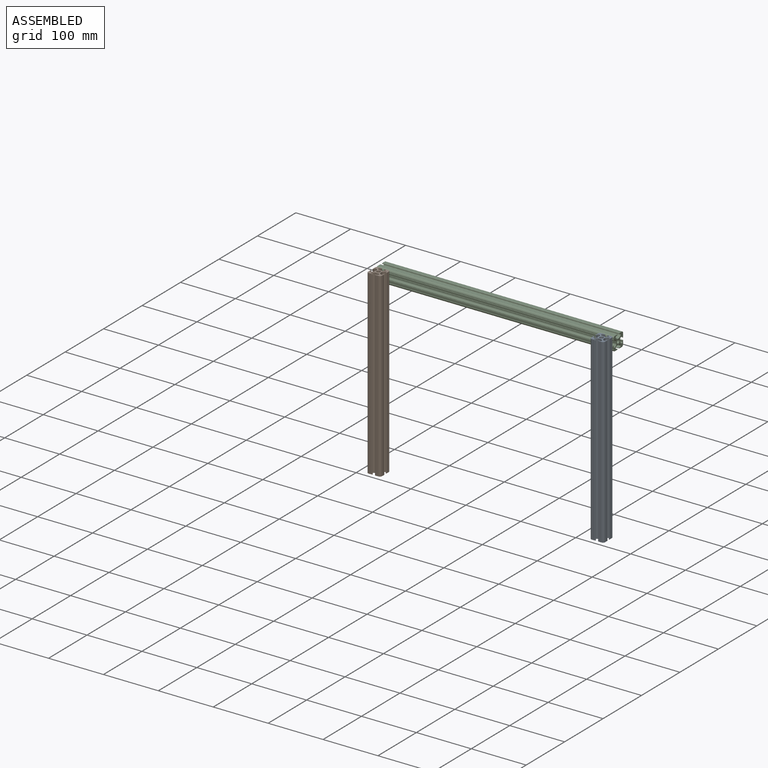
[diagram: assembled view]
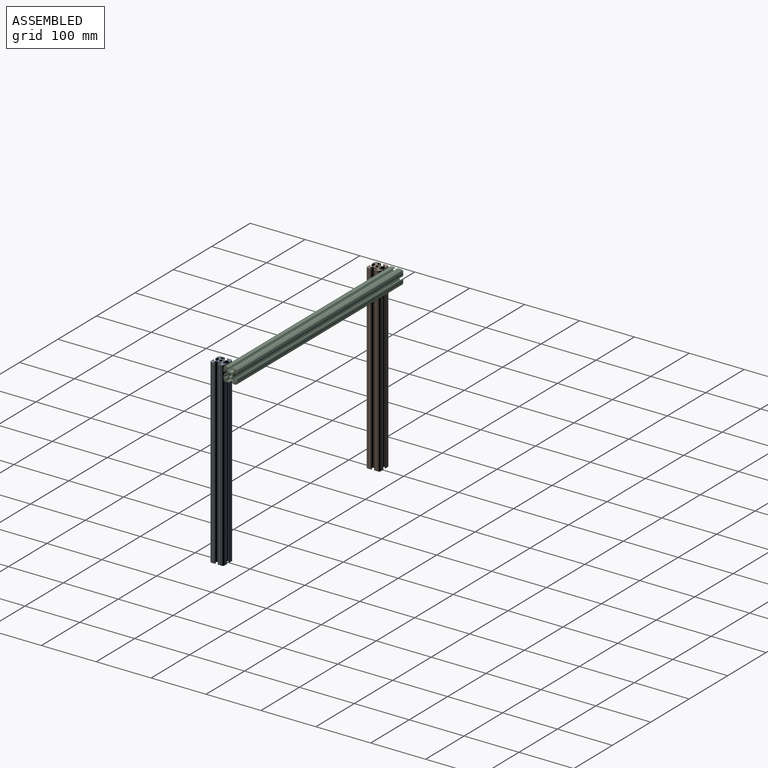
[diagram: assembled view, second angle]
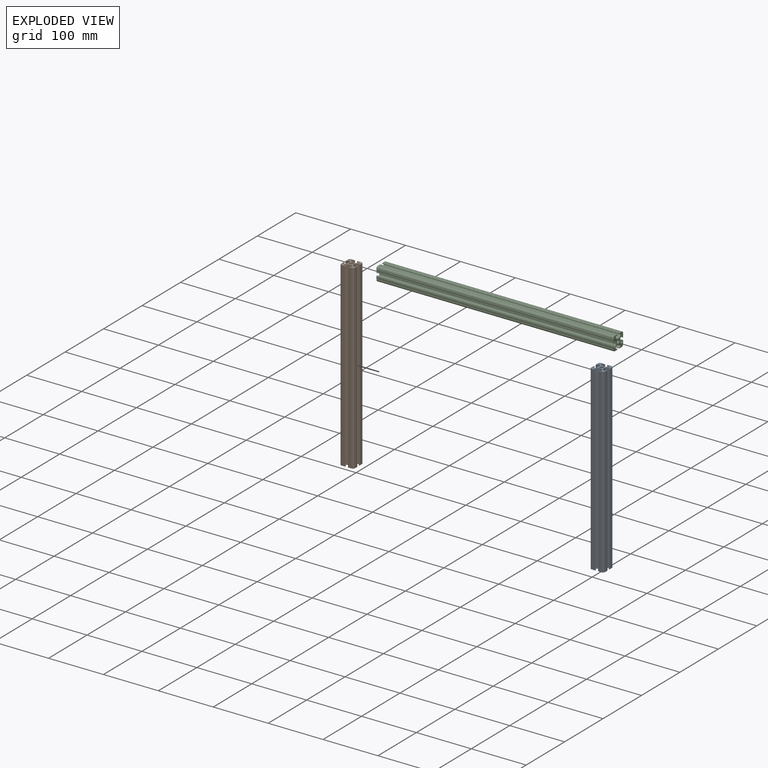
[diagram: exploded view]
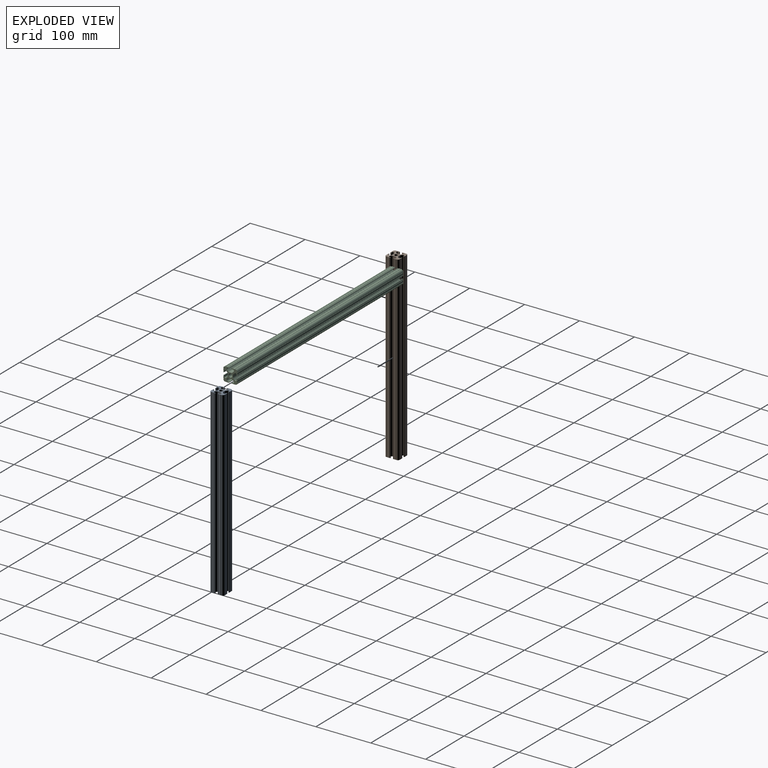
[diagram: exploded view, second angle]
ASSEMBLY  parts=3 mates=6
PART A: 77 faces, bbox 25.4x25.4x330.2 mm
  f0: cylinder r=0.77mm len=330.2mm, axis (0,0,-1), area 827mm2, adj f1,f73,f75,f76
  f1: plane 330.2x1.73mm, normal (0,-1,0), area 572.7mm2, adj f0,f2,f75,f76
  f2: cylinder r=1.91mm len=330.2mm, axis (0,0,-1), area 1482.1mm2, adj f1,f3,f75,f76
  f3: plane 330.2x1.85mm, normal (-0.71,0.71,0), area 861.8mm2, adj f2,f4,f75,f76
  f4: cylinder r=3.81mm len=330.2mm, axis (0,0,-1), area 988.1mm2, adj f3,f5,f75,f76
  f5: plane 330.2x2.91mm, normal (0,1,0), area 962.4mm2, adj f4,f6,f75,f76
  f6: cylinder r=3.81mm len=330.2mm, axis (0,0,-1), area 988.1mm2, adj f5,f7,f75,f76
  f7: plane 330.2x1.85mm, normal (0.71,0.71,0), area 861.8mm2, adj f6,f8,f75,f76
  f8: cylinder r=1.91mm len=330.2mm, axis (0,0,-1), area 1482.1mm2, adj f7,f9,f75,f76
  f9: plane 330.2x1.73mm, normal (0,-1,0), area 572.7mm2, adj f8,f10,f75,f76
  f10: cylinder r=0.77mm len=330.2mm, axis (0,0,-1), area 802.7mm2, adj f9,f11,f75,f76
  f11: plane 330.2x0.67mm, normal (0,1,0), area 221.3mm2, adj f10,f12,f75,f76
  f12: cylinder r=0.55mm len=330.2mm, axis (0,0,-1), area 564.1mm2, adj f11,f13,f75,f76
  f13: plane 330.2x3.14mm, normal (0,1,0), area 1036mm2, adj f12,f14,f75,f76
  f14: cylinder r=0.55mm len=330.2mm, axis (0,0,-1), area 571.9mm2, adj f13,f15,f75,f76
  f15: cylinder r=3.81mm len=330.2mm, axis (0,0,-1), area 1976.2mm2, adj f14,f16,f75,f76
  f16: plane 330.2x4.24mm, normal (-1,0,0), area 1400.1mm2, adj f15,f17,f75,f76
  f17: cylinder r=0.55mm len=330.2mm, axis (0,0,-1), area 573.4mm2, adj f16,f18,f75,f76
  f18: plane 330.2x0.64mm, normal (-1,0,0), area 211.4mm2, adj f17,f19,f75,f76
  f19: cylinder r=0.77mm len=330.2mm, axis (0,0,-1), area 790.8mm2, adj f18,f20,f75,f76
  f20: plane 330.2x1.73mm, normal (1,0,0), area 572.7mm2, adj f19,f21,f75,f76
  f21: cylinder r=1.91mm len=330.2mm, axis (0,0,-1), area 1482.1mm2, adj f20,f22,f75,f76
  f22: plane 330.2x1.25mm, normal (-0.71,-0.71,0), area 584.9mm2, adj f21,f23,f75,f76
  f23: cylinder r=3.81mm len=330.2mm, axis (0,0,-1), area 988.1mm2, adj f22,f24,f75,f76
  f24: plane 330.2x5.77mm, normal (-1,0,0), area 1905.5mm2, adj f23,f25,f75,f76
  f25: cylinder r=2.81mm len=330.2mm, axis (0,0,-1), area 2915.2mm2, adj f24,f26,f75,f76
  f26: plane 330.2x0.81mm, normal (1,0,0), area 265.8mm2, adj f25,f27,f75,f76
  f27: cylinder r=0.77mm len=330.2mm, axis (0,0,-1), area 802.5mm2, adj f26,f28,f75,f76
  f28: plane 330.2x4.88mm, normal (-1,0,0), area 1611.4mm2, adj f27,f29,f75,f76
  f29: cylinder r=0.55mm len=330.2mm, axis (0,0,-1), area 572mm2, adj f28,f30,f75,f76
  f30: cylinder r=3.81mm len=330.2mm, axis (0,0,-1), area 1976.2mm2, adj f29,f31,f75,f76
  f31: cylinder r=0.55mm len=330.2mm, axis (0,0,-1), area 573.5mm2, adj f30,f32,f75,f76
  f32: plane 330.2x3.78mm, normal (0,-1,0), area 1249.3mm2, adj f31,f33,f75,f76
  f33: cylinder r=0.55mm len=330.2mm, axis (0,0,-1), area 562.7mm2, adj f32,f34,f75,f76
  f34: cylinder r=0.77mm len=330.2mm, axis (0,0,-1), area 794.8mm2, adj f33,f35,f75,f76
  f35: plane 330.2x1.73mm, normal (0,1,0), area 572mm2, adj f34,f36,f75,f76
  f36: cylinder r=1.91mm len=330.2mm, axis (0,0,-1), area 1482.1mm2, adj f35,f37,f75,f76
  f37: plane 330.2x1.84mm, normal (0.71,-0.71,0), area 860.8mm2, adj f36,f38,f75,f76
  f38: cylinder r=3.81mm len=330.2mm, axis (0,0,-1), area 988.1mm2, adj f37,f39,f75,f76
  f39: plane 330.2x2.91mm, normal (0,-1,0), area 962.4mm2, adj f38,f40,f75,f76
  f40: cylinder r=3.81mm len=330.2mm, axis (0,0,-1), area 988.1mm2, adj f39,f41,f75,f76
  f41: plane 330.2x1.84mm, normal (-0.71,-0.71,0), area 860.8mm2, adj f40,f42,f75,f76
  f42: cylinder r=1.91mm len=330.2mm, axis (0,0,-1), area 1482.1mm2, adj f41,f43,f75,f76
  f43: plane 330.2x1.73mm, normal (0,1,0), area 572mm2, adj f42,f44,f75,f76
  f44: cylinder r=0.79mm len=330.2mm, axis (0,0,-1), area 706.2mm2, adj f43,f45,f75,f76
  f45: plane 330.2x0.63mm, normal (0,-1,0), area 208.6mm2, adj f44,f46,f75,f76
  f46: cylinder r=0.55mm len=330.2mm, axis (0,0,-1), area 567.5mm2, adj f45,f47,f75,f76
  f47: plane 330.2x3.15mm, normal (0,-1,0), area 1041.3mm2, adj f46,f48,f75,f76
  f48: cylinder r=0.54mm len=330.2mm, axis (0,0,-1), area 564.8mm2, adj f47,f49,f75,f76
  f49: cylinder r=3.81mm len=330.2mm, axis (0,0,-1), area 1976.2mm2, adj f48,f50,f75,f76
  f50: cylinder r=0.55mm len=330.2mm, axis (0,0,-1), area 562.1mm2, adj f49,f51,f75,f76
  f51: plane 330.2x3.15mm, normal (1,0,0), area 1040.2mm2, adj f50,f52,f75,f76
  f52: cylinder r=0.55mm len=330.2mm, axis (0,0,-1), area 566mm2, adj f51,f53,f75,f76
  f53: plane 330.2x0.63mm, normal (1,0,0), area 209.2mm2, adj f52,f54,f75,f76
  f54: cylinder r=0.78mm len=330.2mm, axis (0,0,-1), area 768.3mm2, adj f53,f55,f75,f76
  f55: plane 330.2x1.73mm, normal (-1,0,0), area 572mm2, adj f54,f56,f75,f76
  f56: cylinder r=1.91mm len=330.2mm, axis (0,0,-1), area 1482.1mm2, adj f55,f57,f75,f76
  f57: plane 330.2x1.84mm, normal (0.71,0.71,0), area 860.8mm2, adj f56,f58,f75,f76
  f58: cylinder r=3.81mm len=330.2mm, axis (0,0,-1), area 988.1mm2, adj f57,f59,f75,f76
  f59: plane 330.2x2.91mm, normal (1,0,0), area 962.4mm2, adj f58,f60,f75,f76
  f60: cylinder r=3.81mm len=330.2mm, axis (0,0,-1), area 988.1mm2, adj f59,f61,f75,f76
  f61: plane 330.2x1.84mm, normal (0.71,-0.71,0), area 860.8mm2, adj f60,f62,f75,f76
  f62: cylinder r=1.91mm len=330.2mm, axis (0,0,-1), area 1482.1mm2, adj f61,f63,f75,f76
  f63: plane 330.2x1.73mm, normal (-1,0,0), area 572mm2, adj f62,f64,f75,f76
  f64: cylinder r=0.78mm len=330.2mm, axis (0,0,-1), area 778.4mm2, adj f63,f65,f75,f76
  f65: plane 330.2x0.64mm, normal (1,0,0), area 211.4mm2, adj f64,f66,f75,f76
  f66: cylinder r=0.55mm len=330.2mm, axis (0,0,-1), area 566.5mm2, adj f65,f67,f75,f76
  f67: plane 330.2x3.15mm, normal (1,0,0), area 1039.3mm2, adj f66,f68,f75,f76
  f68: cylinder r=0.55mm len=330.2mm, axis (0,0,-1), area 570.3mm2, adj f67,f69,f75,f76
  f69: cylinder r=3.81mm len=330.2mm, axis (0,0,-1), area 1976.2mm2, adj f68,f70,f75,f76
  f70: cylinder r=0.56mm len=330.2mm, axis (0,0,-1), area 538.4mm2, adj f69,f71,f75,f76
  f71: plane 330.2x3.13mm, normal (0,1,0), area 1033.4mm2, adj f70,f72,f75,f76
  f72: cylinder r=0.55mm len=330.2mm, axis (0,0,-1), area 562.9mm2, adj f71,f73,f75,f76
  f73: plane 330.2x0.64mm, normal (0,1,0), area 212mm2, adj f0,f72,f75,f76
  f74: cylinder r=3.36mm len=330.2mm, axis (0,0,-1), area 6976.2mm2, adj f75,f76
  f75: plane 25.4x25.4mm, normal (0,0,1), area 296.9mm2, adj f0,f1,f2,f3,f4,f5,f6,f7
  f76: plane 25.4x25.4mm, normal (0,0,-1), area 296.9mm2, adj f0,f1,f2,f3,f4,f5,f6,f7
PART B: same geometry as A
PART C: 77 faces, bbox 25.4x25.4x431.8 mm
  f0: cylinder r=0.77mm len=431.8mm, axis (0,0,-1), area 1081.5mm2, adj f1,f73,f75,f76
  f1: plane 431.8x1.73mm, normal (0,-1,0), area 749mm2, adj f0,f2,f75,f76
  f2: cylinder r=1.91mm len=431.8mm, axis (0,0,-1), area 1938.2mm2, adj f1,f3,f75,f76
  f3: plane 431.8x1.85mm, normal (-0.71,0.71,0), area 1127mm2, adj f2,f4,f75,f76
  f4: cylinder r=3.81mm len=431.8mm, axis (0,0,-1), area 1292.1mm2, adj f3,f5,f75,f76
  f5: plane 431.8x2.91mm, normal (0,1,0), area 1258.6mm2, adj f4,f6,f75,f76
  f6: cylinder r=3.81mm len=431.8mm, axis (0,0,-1), area 1292.1mm2, adj f5,f7,f75,f76
  f7: plane 431.8x1.85mm, normal (0.71,0.71,0), area 1127mm2, adj f6,f8,f75,f76
  f8: cylinder r=1.91mm len=431.8mm, axis (0,0,-1), area 1938.2mm2, adj f7,f9,f75,f76
  f9: plane 431.8x1.73mm, normal (0,-1,0), area 749mm2, adj f8,f10,f75,f76
  f10: cylinder r=0.77mm len=431.8mm, axis (0,0,-1), area 1049.7mm2, adj f9,f11,f75,f76
  f11: plane 431.8x0.67mm, normal (0,1,0), area 289.4mm2, adj f10,f12,f75,f76
  f12: cylinder r=0.55mm len=431.8mm, axis (0,0,-1), area 737.7mm2, adj f11,f13,f75,f76
  f13: plane 431.8x3.14mm, normal (0,1,0), area 1354.8mm2, adj f12,f14,f75,f76
  f14: cylinder r=0.55mm len=431.8mm, axis (0,0,-1), area 747.8mm2, adj f13,f15,f75,f76
  f15: cylinder r=3.81mm len=431.8mm, axis (0,0,-1), area 2584.2mm2, adj f14,f16,f75,f76
  f16: plane 431.8x4.24mm, normal (-1,0,0), area 1830.9mm2, adj f15,f17,f75,f76
  f17: cylinder r=0.55mm len=431.8mm, axis (0,0,-1), area 749.8mm2, adj f16,f18,f75,f76
  f18: plane 431.8x0.64mm, normal (-1,0,0), area 276.4mm2, adj f17,f19,f75,f76
  f19: cylinder r=0.77mm len=431.8mm, axis (0,0,-1), area 1034.2mm2, adj f18,f20,f75,f76
  f20: plane 431.8x1.73mm, normal (1,0,0), area 749mm2, adj f19,f21,f75,f76
  f21: cylinder r=1.91mm len=431.8mm, axis (0,0,-1), area 1938.2mm2, adj f20,f22,f75,f76
  f22: plane 431.8x1.25mm, normal (-0.71,-0.71,0), area 764.9mm2, adj f21,f23,f75,f76
  f23: cylinder r=3.81mm len=431.8mm, axis (0,0,-1), area 1292.1mm2, adj f22,f24,f75,f76
  f24: plane 431.8x5.77mm, normal (-1,0,0), area 2491.8mm2, adj f23,f25,f75,f76
  f25: cylinder r=2.81mm len=431.8mm, axis (0,0,-1), area 3812.2mm2, adj f24,f26,f75,f76
  f26: plane 431.8x0.81mm, normal (1,0,0), area 347.6mm2, adj f25,f27,f75,f76
  f27: cylinder r=0.77mm len=431.8mm, axis (0,0,-1), area 1049.4mm2, adj f26,f28,f75,f76
  f28: plane 431.8x4.88mm, normal (-1,0,0), area 2107.2mm2, adj f27,f29,f75,f76
  f29: cylinder r=0.55mm len=431.8mm, axis (0,0,-1), area 748mm2, adj f28,f30,f75,f76
  f30: cylinder r=3.81mm len=431.8mm, axis (0,0,-1), area 2584.2mm2, adj f29,f31,f75,f76
  f31: cylinder r=0.55mm len=431.8mm, axis (0,0,-1), area 749.9mm2, adj f30,f32,f75,f76
  f32: plane 431.8x3.78mm, normal (0,-1,0), area 1633.7mm2, adj f31,f33,f75,f76
  f33: cylinder r=0.55mm len=431.8mm, axis (0,0,-1), area 735.8mm2, adj f32,f34,f75,f76
  f34: cylinder r=0.77mm len=431.8mm, axis (0,0,-1), area 1039.3mm2, adj f33,f35,f75,f76
  f35: plane 431.8x1.73mm, normal (0,1,0), area 748mm2, adj f34,f36,f75,f76
  f36: cylinder r=1.91mm len=431.8mm, axis (0,0,-1), area 1938.2mm2, adj f35,f37,f75,f76
  f37: plane 431.8x1.84mm, normal (0.71,-0.71,0), area 1125.6mm2, adj f36,f38,f75,f76
  f38: cylinder r=3.81mm len=431.8mm, axis (0,0,-1), area 1292.1mm2, adj f37,f39,f75,f76
  f39: plane 431.8x2.91mm, normal (0,-1,0), area 1258.6mm2, adj f38,f40,f75,f76
  f40: cylinder r=3.81mm len=431.8mm, axis (0,0,-1), area 1292.1mm2, adj f39,f41,f75,f76
  f41: plane 431.8x1.84mm, normal (-0.71,-0.71,0), area 1125.6mm2, adj f40,f42,f75,f76
  f42: cylinder r=1.91mm len=431.8mm, axis (0,0,-1), area 1938.2mm2, adj f41,f43,f75,f76
  f43: plane 431.8x1.73mm, normal (0,1,0), area 748mm2, adj f42,f44,f75,f76
  f44: cylinder r=0.79mm len=431.8mm, axis (0,0,-1), area 923.5mm2, adj f43,f45,f75,f76
  f45: plane 431.8x0.63mm, normal (0,-1,0), area 272.8mm2, adj f44,f46,f75,f76
  f46: cylinder r=0.55mm len=431.8mm, axis (0,0,-1), area 742.2mm2, adj f45,f47,f75,f76
  f47: plane 431.8x3.15mm, normal (0,-1,0), area 1361.6mm2, adj f46,f48,f75,f76
  f48: cylinder r=0.54mm len=431.8mm, axis (0,0,-1), area 738.5mm2, adj f47,f49,f75,f76
  f49: cylinder r=3.81mm len=431.8mm, axis (0,0,-1), area 2584.2mm2, adj f48,f50,f75,f76
  f50: cylinder r=0.55mm len=431.8mm, axis (0,0,-1), area 735mm2, adj f49,f51,f75,f76
  f51: plane 431.8x3.15mm, normal (1,0,0), area 1360.2mm2, adj f50,f52,f75,f76
  f52: cylinder r=0.55mm len=431.8mm, axis (0,0,-1), area 740.2mm2, adj f51,f53,f75,f76
  f53: plane 431.8x0.63mm, normal (1,0,0), area 273.6mm2, adj f52,f54,f75,f76
  f54: cylinder r=0.78mm len=431.8mm, axis (0,0,-1), area 1004.7mm2, adj f53,f55,f75,f76
  f55: plane 431.8x1.73mm, normal (-1,0,0), area 748mm2, adj f54,f56,f75,f76
  f56: cylinder r=1.91mm len=431.8mm, axis (0,0,-1), area 1938.2mm2, adj f55,f57,f75,f76
  f57: plane 431.8x1.84mm, normal (0.71,0.71,0), area 1125.6mm2, adj f56,f58,f75,f76
  f58: cylinder r=3.81mm len=431.8mm, axis (0,0,-1), area 1292.1mm2, adj f57,f59,f75,f76
  f59: plane 431.8x2.91mm, normal (1,0,0), area 1258.6mm2, adj f58,f60,f75,f76
  f60: cylinder r=3.81mm len=431.8mm, axis (0,0,-1), area 1292.1mm2, adj f59,f61,f75,f76
  f61: plane 431.8x1.84mm, normal (0.71,-0.71,0), area 1125.6mm2, adj f60,f62,f75,f76
  f62: cylinder r=1.91mm len=431.8mm, axis (0,0,-1), area 1938.2mm2, adj f61,f63,f75,f76
  f63: plane 431.8x1.73mm, normal (-1,0,0), area 748mm2, adj f62,f64,f75,f76
  f64: cylinder r=0.78mm len=431.8mm, axis (0,0,-1), area 1017.9mm2, adj f63,f65,f75,f76
  f65: plane 431.8x0.64mm, normal (1,0,0), area 276.4mm2, adj f64,f66,f75,f76
  f66: cylinder r=0.55mm len=431.8mm, axis (0,0,-1), area 740.8mm2, adj f65,f67,f75,f76
  f67: plane 431.8x3.15mm, normal (1,0,0), area 1359.1mm2, adj f66,f68,f75,f76
  f68: cylinder r=0.55mm len=431.8mm, axis (0,0,-1), area 745.7mm2, adj f67,f69,f75,f76
  f69: cylinder r=3.81mm len=431.8mm, axis (0,0,-1), area 2584.2mm2, adj f68,f70,f75,f76
  f70: cylinder r=0.56mm len=431.8mm, axis (0,0,-1), area 704mm2, adj f69,f71,f75,f76
  f71: plane 431.8x3.13mm, normal (0,1,0), area 1351.3mm2, adj f70,f72,f75,f76
  f72: cylinder r=0.55mm len=431.8mm, axis (0,0,-1), area 736.1mm2, adj f71,f73,f75,f76
  f73: plane 431.8x0.64mm, normal (0,1,0), area 277.2mm2, adj f0,f72,f75,f76
  f74: cylinder r=3.36mm len=431.8mm, axis (0,0,-1), area 9122.7mm2, adj f75,f76
  f75: plane 25.4x25.4mm, normal (0,0,1), area 296.9mm2, adj f0,f1,f2,f3,f4,f5,f6,f7
  f76: plane 25.4x25.4mm, normal (0,0,-1), area 296.9mm2, adj f0,f1,f2,f3,f4,f5,f6,f7
PLACE A t=(214.68,10.67,-114.78)mm
PLACE B rot(axis=(0,0,1),90deg) t=(-193.85,31.43,-114.78)mm
PLACE C rot(axis=(0,-1,0),90deg) t=(0.03,36.07,49.07)mm fixed
MATE planar A.f74 <-> C.f67  axis (0,0,-1) through (203.23,19.99,50.32)mm
MATE planar B.f71 <-> C.f74  axis (-1,0,0) through (-215.87,26.2,-114.78)mm
MATE planar B.f69 <-> C.f51  axis (0,0,1) through (-212.06,28.88,50.32)mm
MATE planar A.f71 <-> C.f47  axis (0,1,0) through (209.45,32.69,-114.78)mm
MATE planar B.f67 <-> C.f47  axis (0,1,0) through (-209.39,32.69,-114.78)mm
MATE planar C.f76 <-> A.f51  axis (1,0,0) through (215.93,45.44,37.54)mm
